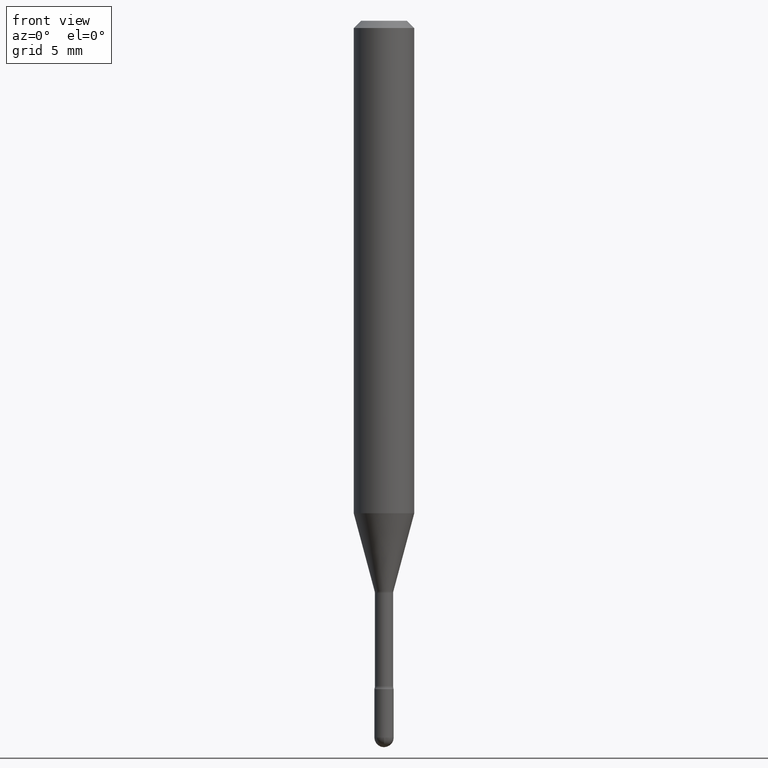
[diagram: clean part render]
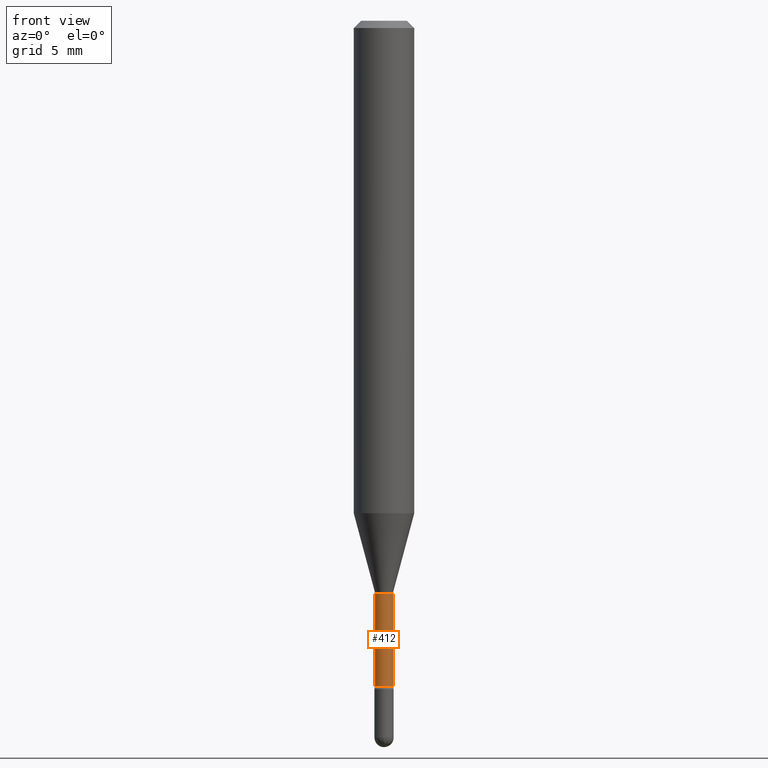
[diagram: same view with one face highlighted and labeled with its STEP entity id]
A machine part, front view. The second image highlights one B-rep face of the part: STEP entity #412.
In plain terms, the highlighted cylindrical surface (edge-blend (fillet) strip) has radius 0.4775 mm, axis along (-0, 0, 1).
Its self-contained STEP definition (entity closure, byte-faithful):
#9 = VECTOR ( 'NONE', #503, 39.37007874015748143 ) ;
#44 = DIRECTION ( 'NONE',  ( -2.445468806185136597E-29, 3.491481338843145583E-15, 1.000000000000000000 ) ) ;
#51 = CIRCLE ( 'NONE', #378, 0.01880000000000000421 ) ;
#102 = CARTESIAN_POINT ( 'NONE',  ( -0.01880000000000000421, -4.328698728913427470E-15, -1.181974787463810683 ) ) ;
#112 = VERTEX_POINT ( 'NONE', #102 ) ;
#127 = EDGE_CURVE ( 'NONE', #472, #112, #205, .T. ) ;
#139 = ORIENTED_EDGE ( 'NONE', *, *, #189, .T. ) ;
#152 = CARTESIAN_POINT ( 'NONE',  ( -1.169113584055446105E-44, 1.669184350826100908E-30, 4.780733988912460139E-16 ) ) ;
#156 = DIRECTION ( 'NONE',  ( 1.000000000000000000, -6.982962677686267499E-15, 4.839830652673567839E-29 ) ) ;
#167 = CARTESIAN_POINT ( 'NONE',  ( 3.360370590718576112E-29, -4.797718613059664510E-15, -1.374121224617320447 ) ) ;
#171 = EDGE_LOOP ( 'NONE', ( #508, #139, #555, #553 ) ) ;
#178 = EDGE_CURVE ( 'NONE', #442, #351, #245, .T. ) ;
#182 = DIRECTION ( 'NONE',  ( 1.000000000000000000, -6.982962677686259611E-15, 0.000000000000000000 ) ) ;
#189 = EDGE_CURVE ( 'NONE', #472, #442, #401, .T. ) ;
#195 = CYLINDRICAL_SURFACE ( 'NONE', #416, 0.01880000000000000768 ) ;
#205 = LINE ( 'NONE', #424, #9 ) ;
#229 = CARTESIAN_POINT ( 'NONE',  ( 2.890482472440055862E-29, -4.126842913412987863E-15, -1.181974787463810683 ) ) ;
#245 = LINE ( 'NONE', #255, #409 ) ;
#255 = CARTESIAN_POINT ( 'NONE',  ( 0.01880000000000000768, -1.312796983405001992E-16, 4.780733988912470000E-16 ) ) ;
#257 = DIRECTION ( 'NONE',  ( 1.000000000000000000, -6.982962677686258033E-15, 0.000000000000000000 ) ) ;
#316 = CARTESIAN_POINT ( 'NONE',  ( 0.01880000000000000768, -4.928998311400166312E-15, -1.374121224617320447 ) ) ;
#325 = EDGE_CURVE ( 'NONE', #112, #351, #51, .T. ) ;
#339 = DIRECTION ( 'NONE',  ( -2.445468806185136597E-29, 3.491481338843145583E-15, 1.000000000000000000 ) ) ;
#351 = VERTEX_POINT ( 'NONE', #365 ) ;
#365 = CARTESIAN_POINT ( 'NONE',  ( 0.01880000000000000421, -4.258122611753489664E-15, -1.181974787463810683 ) ) ;
#374 = FACE_OUTER_BOUND ( 'NONE', #171, .T. ) ;
#378 = AXIS2_PLACEMENT_3D ( 'NONE', #229, #446, #182 ) ;
#401 = CIRCLE ( 'NONE', #537, 0.01880000000000000768 ) ;
#409 = VECTOR ( 'NONE', #434, 39.37007874015748143 ) ;
#412 = ADVANCED_FACE ( 'NONE', ( #374 ), #195, .T. ) ;
#416 = AXIS2_PLACEMENT_3D ( 'NONE', #152, #339, #156 ) ;
#424 = CARTESIAN_POINT ( 'NONE',  ( -0.01880000000000000768, 1.335820343229005412E-16, 4.780733988912451265E-16 ) ) ;
#434 = DIRECTION ( 'NONE',  ( -2.445468806185136877E-29, 3.491481338843145188E-15, 1.000000000000000000 ) ) ;
#442 = VERTEX_POINT ( 'NONE', #316 ) ;
#445 = CARTESIAN_POINT ( 'NONE',  ( -0.01880000000000000768, -4.670136139594142600E-15, -1.374121224617320447 ) ) ;
#446 = DIRECTION ( 'NONE',  ( -2.445468806185136597E-29, 3.491481338843145583E-15, 1.000000000000000000 ) ) ;
#472 = VERTEX_POINT ( 'NONE', #445 ) ;
#503 = DIRECTION ( 'NONE',  ( -2.445468806185136877E-29, 3.491481338843145188E-15, 1.000000000000000000 ) ) ;
#508 = ORIENTED_EDGE ( 'NONE', *, *, #127, .F. ) ;
#537 = AXIS2_PLACEMENT_3D ( 'NONE', #167, #44, #257 ) ;
#553 = ORIENTED_EDGE ( 'NONE', *, *, #325, .F. ) ;
#555 = ORIENTED_EDGE ( 'NONE', *, *, #178, .T. ) ;